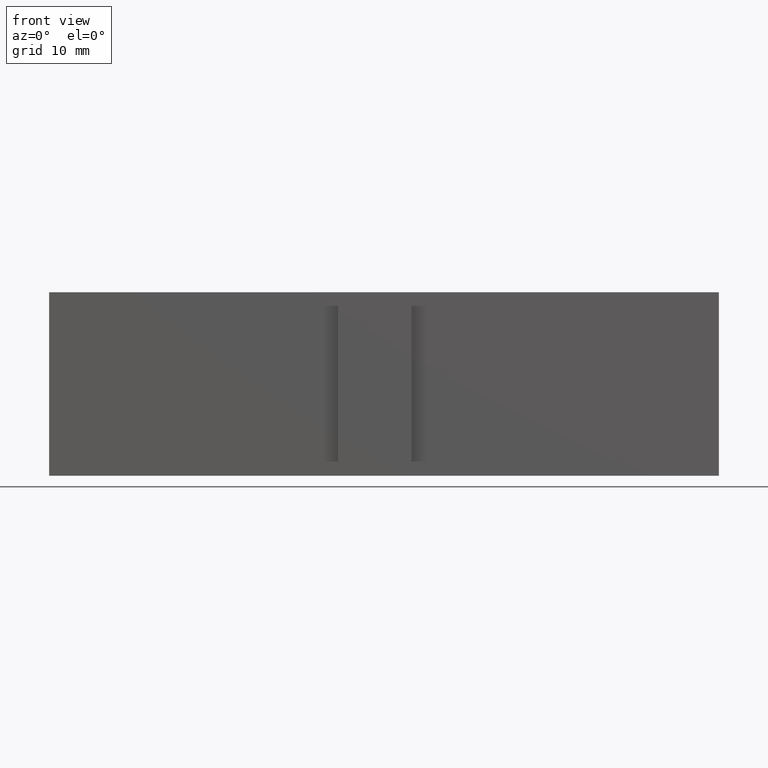
[diagram: clean part render]
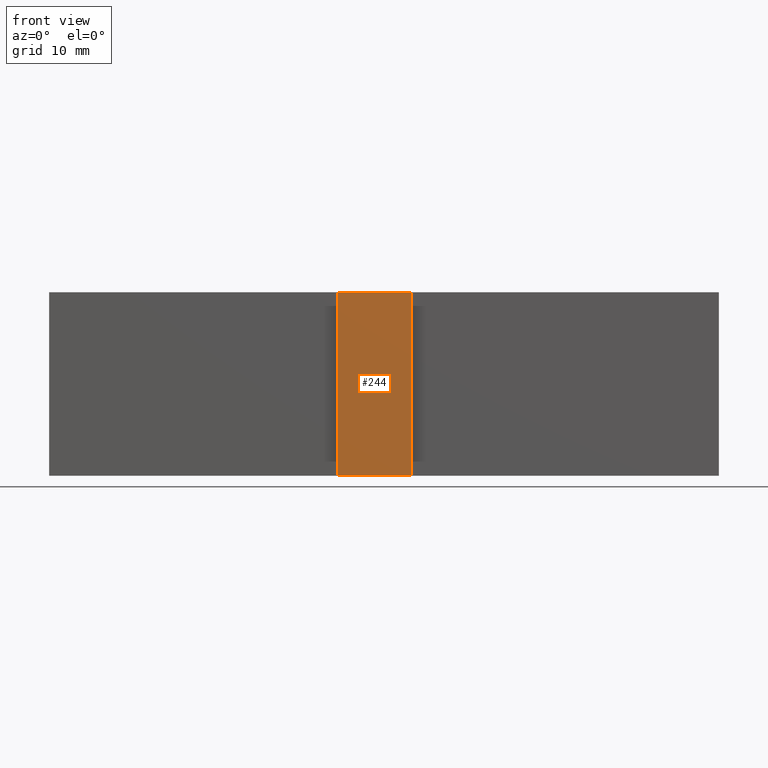
[diagram: same view with one face highlighted and labeled with its STEP entity id]
A machine part, front view. The second image highlights one B-rep face of the part: STEP entity #244.
In plain terms, the highlighted planar face has unit normal (0, -1, 0).
Its self-contained STEP definition (entity closure, byte-faithful):
#18=FACE_OUTER_BOUND('',#31,.T.);
#31=EDGE_LOOP('',(#178,#179,#180,#181));
#45=LINE('',#362,#78);
#54=LINE('',#380,#87);
#56=LINE('',#384,#89);
#57=LINE('',#385,#90);
#78=VECTOR('',#298,10.);
#87=VECTOR('',#309,10.);
#89=VECTOR('',#313,10.);
#90=VECTOR('',#314,10.);
#111=VERTEX_POINT('',#359);
#112=VERTEX_POINT('',#361);
#120=VERTEX_POINT('',#378);
#121=VERTEX_POINT('',#383);
#133=EDGE_CURVE('',#112,#111,#45,.T.);
#142=EDGE_CURVE('',#120,#111,#54,.T.);
#144=EDGE_CURVE('',#120,#121,#56,.T.);
#145=EDGE_CURVE('',#121,#112,#57,.T.);
#178=ORIENTED_EDGE('',*,*,#144,.T.);
#179=ORIENTED_EDGE('',*,*,#145,.T.);
#180=ORIENTED_EDGE('',*,*,#133,.T.);
#181=ORIENTED_EDGE('',*,*,#142,.F.);
#231=PLANE('',#280);
#244=ADVANCED_FACE('',(#18),#231,.T.);
#280=AXIS2_PLACEMENT_3D('',#382,#311,#312);
#298=DIRECTION('',(1.,1.04083408558608E-16,0.));
#309=DIRECTION('',(0.,0.,-1.));
#311=DIRECTION('center_axis',(1.04083408558608E-16,-1.,0.));
#312=DIRECTION('ref_axis',(0.,0.,-1.));
#313=DIRECTION('',(-1.,-1.04083408558608E-16,0.));
#314=DIRECTION('',(0.,0.,-1.));
#359=CARTESIAN_POINT('',(-33.5,-1.,-10.));
#361=CARTESIAN_POINT('',(-41.5,-1.,-10.));
#362=CARTESIAN_POINT('',(-33.5,-1.,-10.));
#378=CARTESIAN_POINT('',(-33.5,-1.,10.));
#380=CARTESIAN_POINT('',(-33.5,-1.,0.));
#382=CARTESIAN_POINT('Origin',(-33.5,-1.,0.));
#383=CARTESIAN_POINT('',(-41.5,-1.,10.));
#384=CARTESIAN_POINT('',(-33.5,-1.,10.));
#385=CARTESIAN_POINT('',(-41.5,-1.,0.));